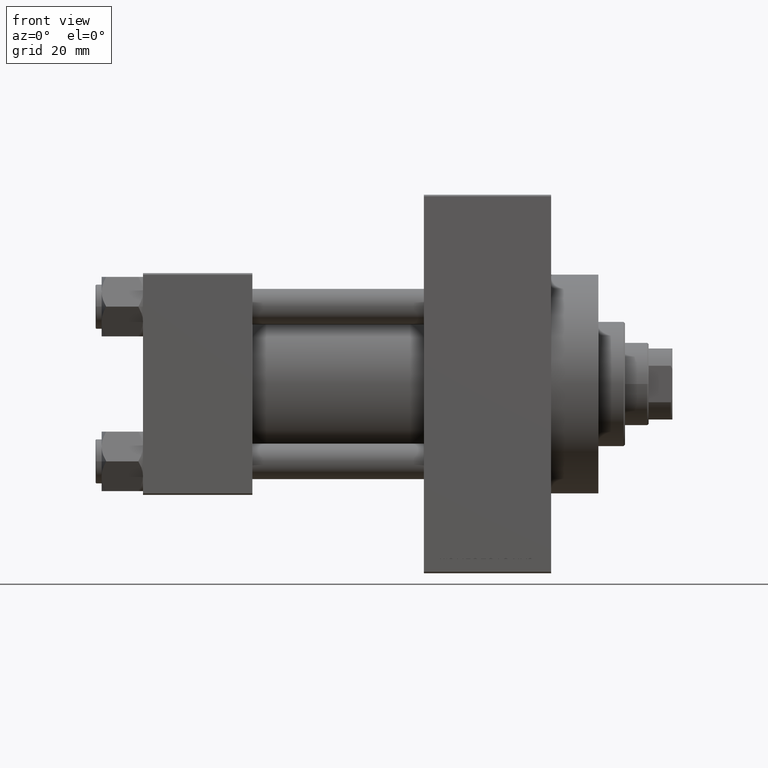
[diagram: clean part render]
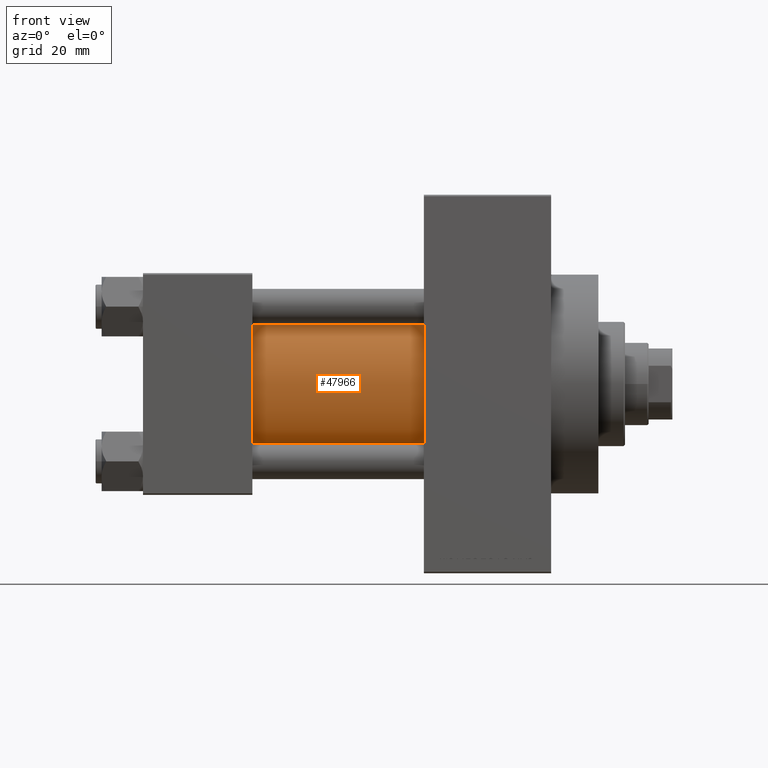
[diagram: same view with one face highlighted and labeled with its STEP entity id]
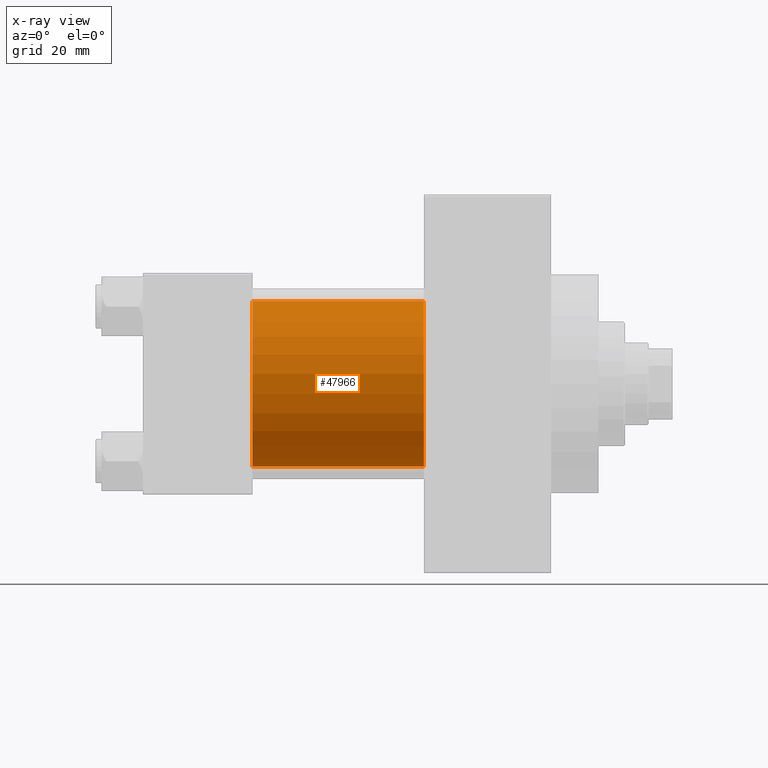
[diagram: x-ray of the same camera — body ghosted, the highlighted face saturated]
A machine part, front view. The second image highlights one B-rep face of the part: STEP entity #47966.
The next image is the same camera in x-ray: the body ghosted, the highlighted face saturated — about 2% of this face is hidden behind the body in this view.
In plain terms, the highlighted cylindrical surface (partial cylindrical patch) has radius 28 mm, axis along (-1, -0, -0).
Its self-contained STEP definition (entity closure, byte-faithful):
#10203 = AXIS2_PLACEMENT_3D ( 'NONE', #20948, #47032, #20699 ) ;
#10434 = FACE_OUTER_BOUND ( 'NONE', #34802, .T. ) ;
#13177 = CYLINDRICAL_SURFACE ( 'NONE', #40708, 28.00000000000000000 ) ;
#13426 = DIRECTION ( 'NONE',  ( -1.000000000000000000, -0.000000000000000000, -0.000000000000000000 ) ) ;
#13633 = AXIS2_PLACEMENT_3D ( 'NONE', #32624, #27930, #24188 ) ;
#13743 = DIRECTION ( 'NONE',  ( -1.000000000000000000, -0.000000000000000000, -0.000000000000000000 ) ) ;
#15566 = CARTESIAN_POINT ( 'NONE',  ( 95.00000000000000000, 8.269258236473776482E-16, -28.00000000000000000 ) ) ;
#16124 = VERTEX_POINT ( 'NONE', #15566 ) ;
#18032 = CARTESIAN_POINT ( 'NONE',  ( 37.00000000000000000, 8.269258236473776482E-16, -28.00000000000000000 ) ) ;
#18061 = VECTOR ( 'NONE', #31186, 1000.000000000000000 ) ;
#20699 = DIRECTION ( 'NONE',  ( 0.000000000000000000, 0.000000000000000000, -1.000000000000000000 ) ) ;
#20948 = CARTESIAN_POINT ( 'NONE',  ( 95.00000000000000000, -2.602085213965210642E-15, 0.000000000000000000 ) ) ;
#22415 = ORIENTED_EDGE ( 'NONE', *, *, #44597, .T. ) ;
#24188 = DIRECTION ( 'NONE',  ( 0.000000000000000000, 0.000000000000000000, 1.000000000000000000 ) ) ;
#24362 = ORIENTED_EDGE ( 'NONE', *, *, #29275, .F. ) ;
#24899 = ORIENTED_EDGE ( 'NONE', *, *, #30324, .F. ) ;
#26824 = VECTOR ( 'NONE', #13743, 1000.000000000000000 ) ;
#27930 = DIRECTION ( 'NONE',  ( 1.000000000000000000, -0.000000000000000000, 0.000000000000000000 ) ) ;
#28377 = LINE ( 'NONE', #32357, #26824 ) ;
#29275 = EDGE_CURVE ( 'NONE', #34385, #16124, #29907, .T. ) ;
#29907 = CIRCLE ( 'NONE', #10203, 28.00000000000000000 ) ;
#30324 = EDGE_CURVE ( 'NONE', #16124, #38024, #38127, .T. ) ;
#31186 = DIRECTION ( 'NONE',  ( -1.000000000000000000, -0.000000000000000000, -0.000000000000000000 ) ) ;
#32291 = CARTESIAN_POINT ( 'NONE',  ( 95.00000000000000000, -2.602085213965210642E-15, 0.000000000000000000 ) ) ;
#32322 = EDGE_CURVE ( 'NONE', #34385, #36252, #28377, .T. ) ;
#32357 = CARTESIAN_POINT ( 'NONE',  ( 95.00000000000000000, -2.602085213965210642E-15, 28.00000000000000000 ) ) ;
#32624 = CARTESIAN_POINT ( 'NONE',  ( 37.00000000000000000, -2.602085213965210642E-15, 0.000000000000000000 ) ) ;
#33923 = CARTESIAN_POINT ( 'NONE',  ( 95.00000000000000000, -2.602085213965210642E-15, 28.00000000000000000 ) ) ;
#34385 = VERTEX_POINT ( 'NONE', #33923 ) ;
#34802 = EDGE_LOOP ( 'NONE', ( #24899, #24362, #41230, #22415 ) ) ;
#35027 = CIRCLE ( 'NONE', #13633, 28.00000000000000000 ) ;
#36252 = VERTEX_POINT ( 'NONE', #44537 ) ;
#36253 = DIRECTION ( 'NONE',  ( 0.000000000000000000, 0.000000000000000000, 1.000000000000000000 ) ) ;
#38024 = VERTEX_POINT ( 'NONE', #18032 ) ;
#38127 = LINE ( 'NONE', #42103, #18061 ) ;
#40708 = AXIS2_PLACEMENT_3D ( 'NONE', #32291, #13426, #36253 ) ;
#41230 = ORIENTED_EDGE ( 'NONE', *, *, #32322, .T. ) ;
#42103 = CARTESIAN_POINT ( 'NONE',  ( 95.00000000000000000, 8.269258236473776482E-16, -28.00000000000000000 ) ) ;
#44537 = CARTESIAN_POINT ( 'NONE',  ( 37.00000000000000000, -2.602085213965210642E-15, 28.00000000000000000 ) ) ;
#44597 = EDGE_CURVE ( 'NONE', #36252, #38024, #35027, .T. ) ;
#47032 = DIRECTION ( 'NONE',  ( 1.000000000000000000, 0.000000000000000000, 0.000000000000000000 ) ) ;
#47966 = ADVANCED_FACE ( 'NONE', ( #10434 ), #13177, .T. ) ;